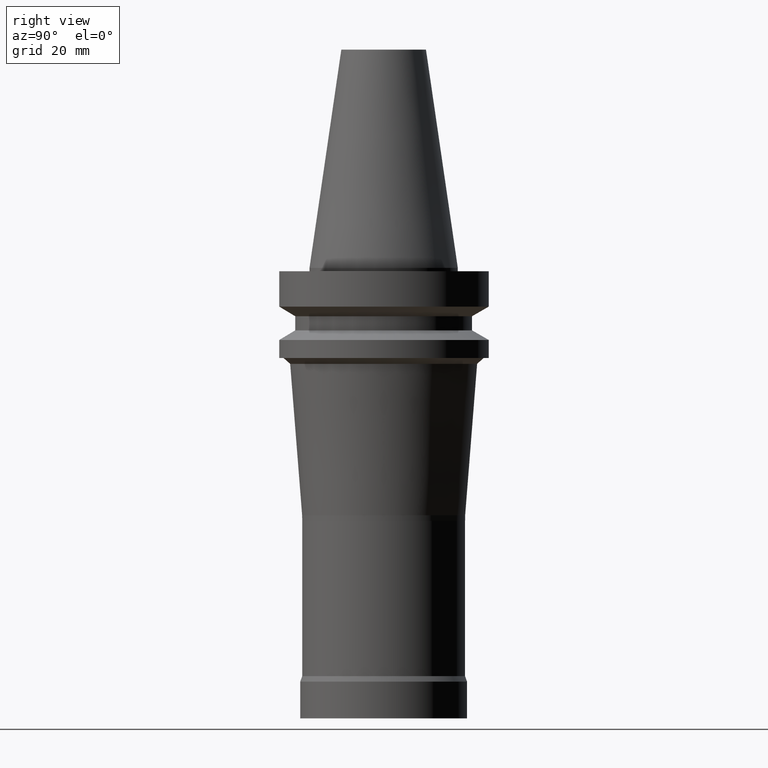
[diagram: clean part render]
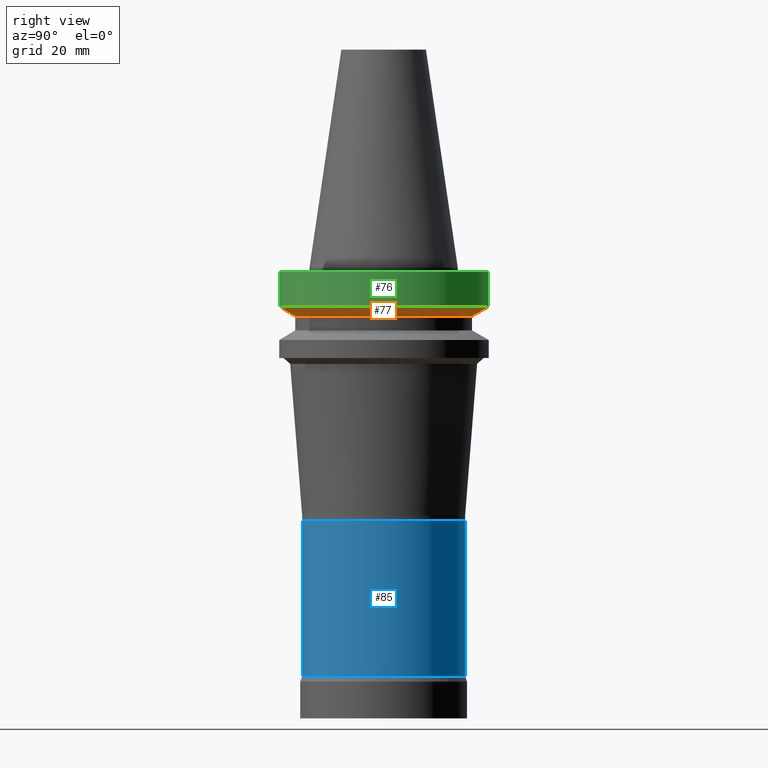
[diagram: same view with three faces highlighted in distinct colors, each labeled with its STEP entity id]
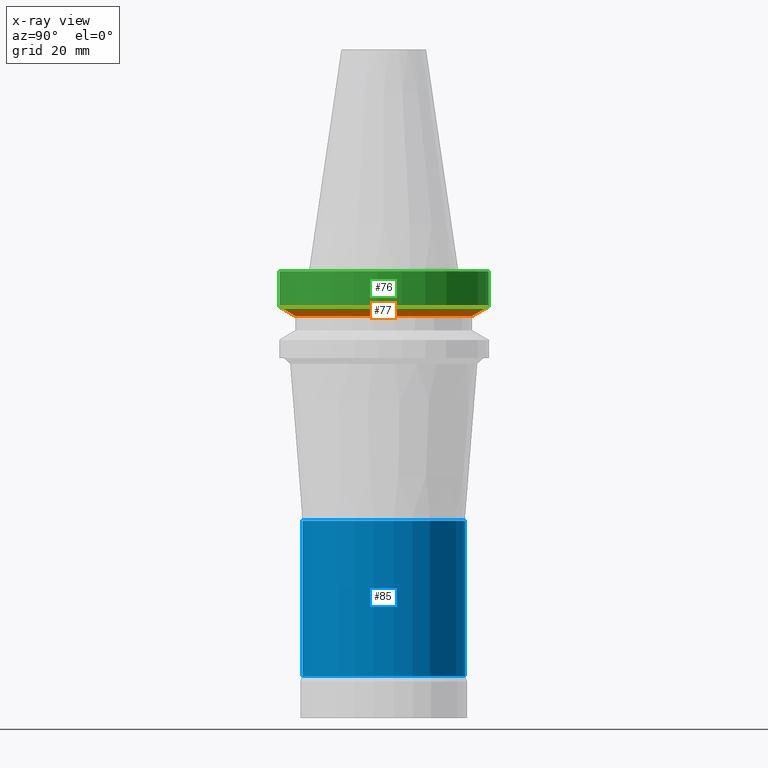
[diagram: x-ray of the same camera — body ghosted, the three highlighted faces saturated]
A machine part, right view with three faces highlighted in distinct colors.
The next image is the same camera in x-ray (body ghosted, the three faces saturated) — at least one of them is partly hidden behind the body in this view.
Their STEP definitions:

[orange] entity #77 — the highlighted conical surface has half-angle 60 deg.
#77=ADVANCED_FACE('',(#99,#100),#101,.T.);
#99=FACE_BOUND('',#148,.T.);
#100=FACE_BOUND('',#149,.T.);
#101=CONICAL_SURFACE('',#150,29.0,1.04719755058882);
#148=EDGE_LOOP('',(#201));
#149=EDGE_LOOP('',(#202));
#150=AXIS2_PLACEMENT_3D('',#203,#204,#205);
#201=ORIENTED_EDGE('',*,*,#277,.F.);
#202=ORIENTED_EDGE('',*,*,#276,.T.);
#203=CARTESIAN_POINT('',(7.9867641352326E-016,1.59735282704652E-015,-13.043375675));
#204=DIRECTION('',(-6.12323399573677E-017,-1.22464679914735E-016,1.0));
#205=DIRECTION('',(-1.23259516440783E-032,1.0,1.22464679914735E-016));
#276=EDGE_CURVE('',#294,#294,#295,.T.);
#277=EDGE_CURVE('',#296,#296,#297,.T.);
#294=VERTEX_POINT('',#326);
#295=CIRCLE('',#327,31.5);
#296=VERTEX_POINT('',#328);
#297=CIRCLE('',#329,26.5);
#326=CARTESIAN_POINT('',(7.10295143505464E-016,31.5,-11.6));
#327=AXIS2_PLACEMENT_3D('',#360,#361,#362);
#328=CARTESIAN_POINT('',(8.87057683541055E-016,26.5,-14.48675135));
#329=AXIS2_PLACEMENT_3D('',#363,#364,#365);
#360=CARTESIAN_POINT('',(7.10295143505465E-016,1.42059028701093E-015,-11.6));
#361=DIRECTION('',(6.12323399573677E-017,1.22464679914735E-016,-1.0));
#362=DIRECTION('',(-1.23259516440783E-032,1.0,1.22464679914735E-016));
#363=CARTESIAN_POINT('',(8.87057683541055E-016,1.77411536708211E-015,-14.48675135));
#364=DIRECTION('',(6.12323399573677E-017,1.22464679914735E-016,-1.0));
#365=DIRECTION('',(-1.23259516440783E-032,1.0,1.22464679914735E-016));

[blue] entity #85 — the highlighted cylindrical surface (bore or boss wall) has radius 24.4 mm, axis along (-0, -0, 1).
#85=ADVANCED_FACE('',(#123,#124),#125,.T.);
#123=FACE_BOUND('',#172,.T.);
#124=FACE_BOUND('',#173,.T.);
#125=CYLINDRICAL_SURFACE('',#174,24.4);
#172=EDGE_LOOP('',(#241));
#173=EDGE_LOOP('',(#242));
#174=AXIS2_PLACEMENT_3D('',#243,#244,#245);
#241=ORIENTED_EDGE('',*,*,#285,.F.);
#242=ORIENTED_EDGE('',*,*,#284,.T.);
#243=CARTESIAN_POINT('',(6.0670452723855E-015,1.2134090544771E-014,-99.08236851));
#244=DIRECTION('',(-6.12323399573677E-017,-1.22464679914735E-016,1.0));
#245=DIRECTION('',(-1.23259516440783E-032,1.0,1.22464679914735E-016));
#284=EDGE_CURVE('',#310,#310,#311,.T.);
#285=EDGE_CURVE('',#312,#312,#313,.T.);
#310=VERTEX_POINT('',#342);
#311=CIRCLE('',#343,24.4);
#312=VERTEX_POINT('',#344);
#313=CIRCLE('',#345,24.4);
#342=CARTESIAN_POINT('',(4.64209393729612E-015,24.4,-75.81114719));
#343=AXIS2_PLACEMENT_3D('',#384,#385,#386);
#344=CARTESIAN_POINT('',(7.49199660747488E-015,24.4,-122.35358983));
#345=AXIS2_PLACEMENT_3D('',#387,#388,#389);
#384=CARTESIAN_POINT('',(4.64209393729612E-015,9.28418787459223E-015,-75.81114719));
#385=DIRECTION('',(6.12323399573677E-017,1.22464679914735E-016,-1.0));
#386=DIRECTION('',(-1.23259516440783E-032,1.0,1.22464679914735E-016));
#387=CARTESIAN_POINT('',(7.49199660747488E-015,1.49839932149498E-014,-122.35358983));
#388=DIRECTION('',(6.12323399573677E-017,1.22464679914735E-016,-1.0));
#389=DIRECTION('',(-1.23259516440783E-032,1.0,1.22464679914735E-016));

[green] entity #76 — the highlighted cylindrical surface (bore or boss wall) has radius 31.5 mm, axis along (-0, -0, 1).
#76=ADVANCED_FACE('',(#96,#97),#98,.T.);
#96=FACE_BOUND('',#145,.T.);
#97=FACE_BOUND('',#146,.T.);
#98=CYLINDRICAL_SURFACE('',#147,31.5);
#145=EDGE_LOOP('',(#196));
#146=EDGE_LOOP('',(#197));
#147=AXIS2_PLACEMENT_3D('',#198,#199,#200);
#196=ORIENTED_EDGE('',*,*,#276,.F.);
#197=ORIENTED_EDGE('',*,*,#274,.T.);
#198=CARTESIAN_POINT('',(3.85763741731416E-016,7.71527483462832E-016,-6.3));
#199=DIRECTION('',(-6.12323399573677E-017,-1.22464679914735E-016,1.0));
#200=DIRECTION('',(-1.23259516440783E-032,1.0,1.22464679914735E-016));
#274=EDGE_CURVE('',#290,#290,#291,.T.);
#276=EDGE_CURVE('',#294,#294,#295,.T.);
#290=VERTEX_POINT('',#322);
#291=CIRCLE('',#323,31.5);
#294=VERTEX_POINT('',#326);
#295=CIRCLE('',#327,31.5);
#322=CARTESIAN_POINT('',(6.12323399573673E-017,31.5,-0.999999999999996));
#323=AXIS2_PLACEMENT_3D('',#354,#355,#356);
#326=CARTESIAN_POINT('',(7.10295143505464E-016,31.5,-11.6));
#327=AXIS2_PLACEMENT_3D('',#360,#361,#362);
#354=CARTESIAN_POINT('',(6.12323399573677E-017,1.22464679914735E-016,-1.0));
#355=DIRECTION('',(6.12323399573677E-017,1.22464679914735E-016,-1.0));
#356=DIRECTION('',(-1.23259516440783E-032,1.0,1.22464679914735E-016));
#360=CARTESIAN_POINT('',(7.10295143505465E-016,1.42059028701093E-015,-11.6));
#361=DIRECTION('',(6.12323399573677E-017,1.22464679914735E-016,-1.0));
#362=DIRECTION('',(-1.23259516440783E-032,1.0,1.22464679914735E-016));